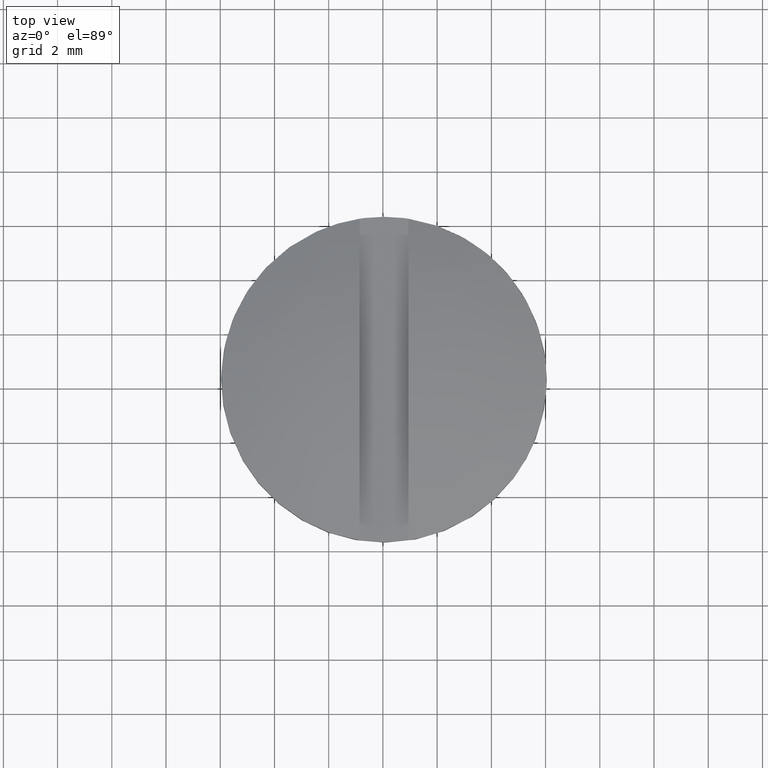
[diagram: clean part render]
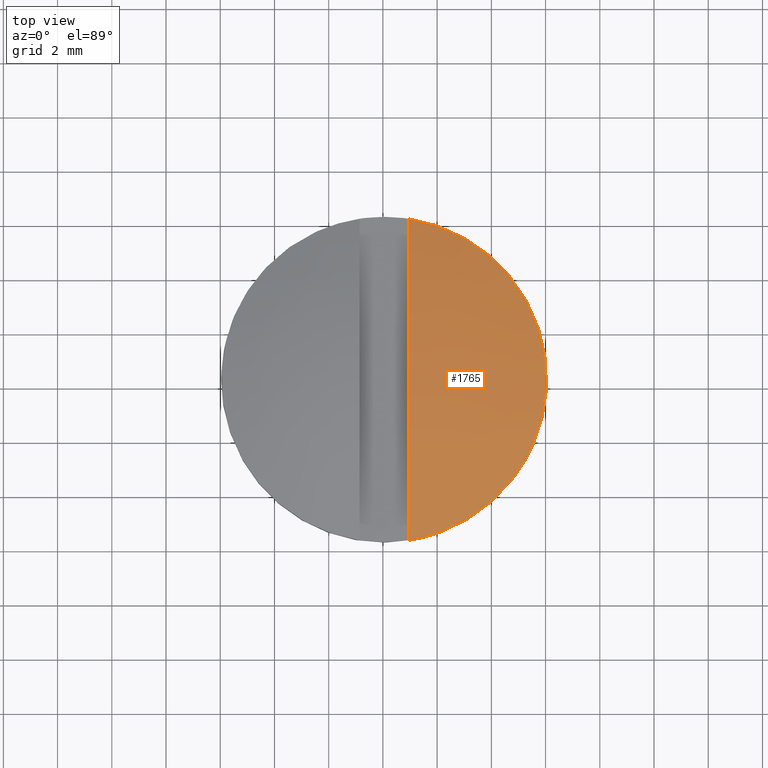
[diagram: same view with one face highlighted and labeled with its STEP entity id]
A machine part, top view. The second image highlights one B-rep face of the part: STEP entity #1765.
In plain terms, the highlighted face is a freeform B-spline surface patch.
Its self-contained STEP definition (entity closure, byte-faithful):
#1309=CARTESIAN_POINT('',(0.940100000000000,5.932115979985561,20.0));
#1310=VERTEX_POINT('',#1309);
#1324=CARTESIAN_POINT('',(4.823902582848771,-3.621495940675485,20.0));
#1325=VERTEX_POINT('',#1324);
#1326=CARTESIAN_POINT('',(0.940100000000000,5.932115979985559,20.0));
#1327=CARTESIAN_POINT('',(6.040100000000011,5.158361721726581,20.000000000000004));
#1328=CARTESIAN_POINT('',(6.040100000000011,0.0,20.0));
#1329=CARTESIAN_POINT('',(6.040100000000011,-2.014963757622406,20.000000000000004));
#1330=CARTESIAN_POINT('',(4.823902582848771,-3.621495940675485,20.0));
#1338=(BOUNDED_CURVE()B_SPLINE_CURVE(2,(#1326,#1327,#1328,#1329,#1330),.UNSPECIFIED.,.F.,.U.)B_SPLINE_CURVE_WITH_KNOTS((3,2,3),(0.0,0.500000000000000,0.729047944628527),.UNSPECIFIED.)CURVE()GEOMETRIC_REPRESENTATION_ITEM()RATIONAL_B_SPLINE_CURVE((1.0,0.758287544405154,1.0,0.889272517709773,0.879992644349418))REPRESENTATION_ITEM(''));
#1339=EDGE_CURVE('',#1310,#1325,#1338,.T.);
#1415=CARTESIAN_POINT('',(0.940100000000000,-5.932115979985561,20.0));
#1416=VERTEX_POINT('',#1415);
#1417=CARTESIAN_POINT('',(4.823902582848771,-3.621495940675485,20.000000000000004));
#1418=CARTESIAN_POINT('',(3.351666585798613,-5.566241486880315,19.999999999999996));
#1419=CARTESIAN_POINT('',(0.940100000000002,-5.932115979985558,20.0));
#1427=(BOUNDED_CURVE()B_SPLINE_CURVE(2,(#1417,#1418,#1419),.UNSPECIFIED.,.F.,.U.)B_SPLINE_CURVE_WITH_KNOTS((3,3),(0.729047944628527,1.0),.UNSPECIFIED.)CURVE()GEOMETRIC_REPRESENTATION_ITEM()RATIONAL_B_SPLINE_CURVE((0.879992644349418,0.869015026695382,1.0))REPRESENTATION_ITEM(''));
#1428=EDGE_CURVE('',#1325,#1416,#1427,.T.);
#1565=CARTESIAN_POINT('',(0.940100000000000,-5.932115979985561,20.0));
#1566=CARTESIAN_POINT('',(0.940100000000000,-3.469447E-015,22.010857142857244));
#1567=CARTESIAN_POINT('',(0.940100000000000,5.932115979985561,20.0));
#1575=(BOUNDED_CURVE()B_SPLINE_CURVE(2,(#1565,#1566,#1567),.UNSPECIFIED.,.F.,.U.)CURVE()GEOMETRIC_REPRESENTATION_ITEM()QUASI_UNIFORM_CURVE()RATIONAL_B_SPLINE_CURVE((1.0,0.947067317679916,1.0))REPRESENTATION_ITEM(''));
#1576=EDGE_CURVE('',#1416,#1310,#1575,.T.);
#1736=CARTESIAN_POINT('',(0.549717023270748,-6.479322003174681,19.820758553503708));
#1737=CARTESIAN_POINT('',(1.937100720758590,-6.517055583154839,19.765823178581584));
#1738=CARTESIAN_POINT('',(4.664295565921207,-6.517055584658404,19.242792585697025));
#1739=CARTESIAN_POINT('',(5.972609978402444,-6.479379827882310,18.781061464234767));
#1740=CARTESIAN_POINT('',(0.681181784589003,-3.346293396435937,20.988888947180797));
#1741=CARTESIAN_POINT('',(2.115296488312862,-3.366426474440530,20.939162605289560));
#1742=CARTESIAN_POINT('',(4.932796165953437,-3.366426475993883,20.398813048138450));
#1743=CARTESIAN_POINT('',(6.282570411768252,-3.346324244896599,19.914981007547958));
#1744=CARTESIAN_POINT('',(0.681181784589003,3.346292769219069,20.988888927941499));
#1745=CARTESIAN_POINT('',(2.115296488312862,3.366425842524532,20.939162585934518));
#1746=CARTESIAN_POINT('',(4.932796165953437,3.366425840971180,20.398813028783390));
#1747=CARTESIAN_POINT('',(6.282570411768252,3.346323611498605,19.914980988308486));
#1748=CARTESIAN_POINT('',(0.549717079069095,6.479320772989696,19.820759012047606));
#1749=CARTESIAN_POINT('',(1.937100796376750,6.517054345440053,19.765823639023971));
#1750=CARTESIAN_POINT('',(4.664295679860623,6.517054343936488,19.242793038790030));
#1751=CARTESIAN_POINT('',(5.972610109960700,6.479378591708593,18.781061908257868));
#1759=(BOUNDED_SURFACE()B_SPLINE_SURFACE(2,2,((#1736,#1740,#1744,#1748),(#1737,#1741,#1745,#1749),(#1738,#1742,#1746,#1750),(#1739,#1743,#1747,#1751)),.UNSPECIFIED.,.F.,.F.,.U.)B_SPLINE_SURFACE_WITH_KNOTS((3,1,3),(3,1,3),(7.507752383303642,10.262697962337940,13.015519654202460),(3.799650260519981,10.262697962337940,16.725744247436520),.UNSPECIFIED.)GEOMETRIC_REPRESENTATION_ITEM()RATIONAL_B_SPLINE_SURFACE(((1.039129248377577,1.006016530876613,1.006016530876613,1.039129233860765),(1.033112717500965,1.0,1.0,1.033112702984153),(1.033112717500965,1.0,1.0,1.033112702984153),(1.039119975231018,1.006007257730054,1.006007257730054,1.039119960714206)))REPRESENTATION_ITEM('')SURFACE());
#1760=ORIENTED_EDGE('',*,*,#1428,.F.);
#1761=ORIENTED_EDGE('',*,*,#1339,.F.);
#1762=ORIENTED_EDGE('',*,*,#1576,.F.);
#1763=EDGE_LOOP('',(#1760,#1761,#1762));
#1764=FACE_OUTER_BOUND('',#1763,.T.);
#1765=ADVANCED_FACE('',(#1764),#1759,.T.);